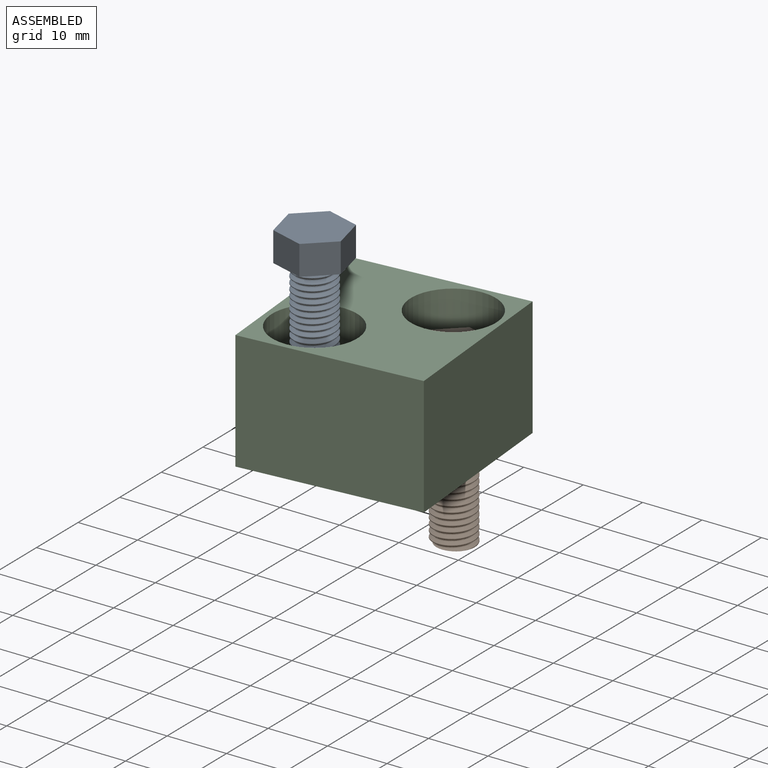
[diagram: assembled view]
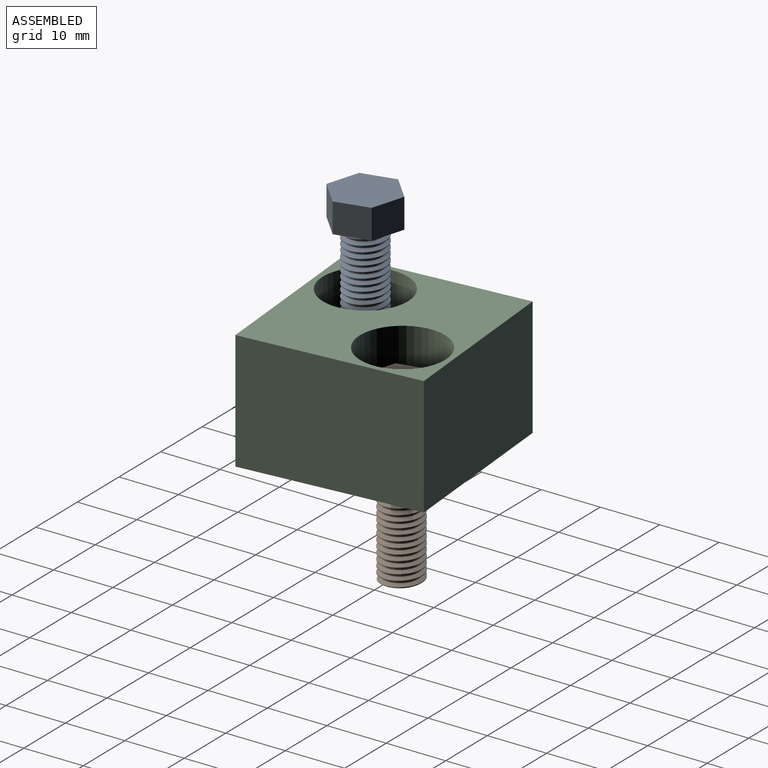
[diagram: assembled view, second angle]
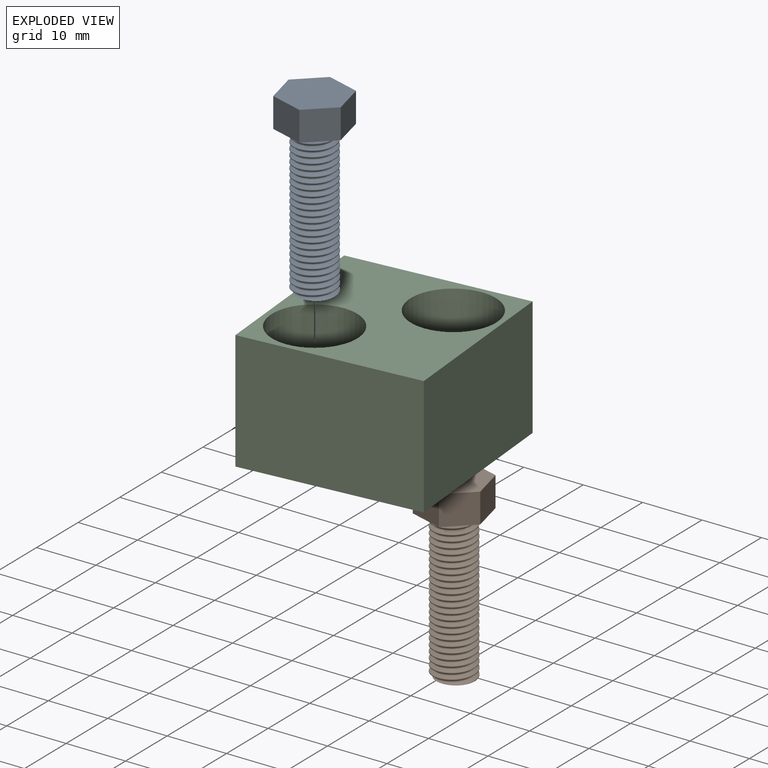
[diagram: exploded view]
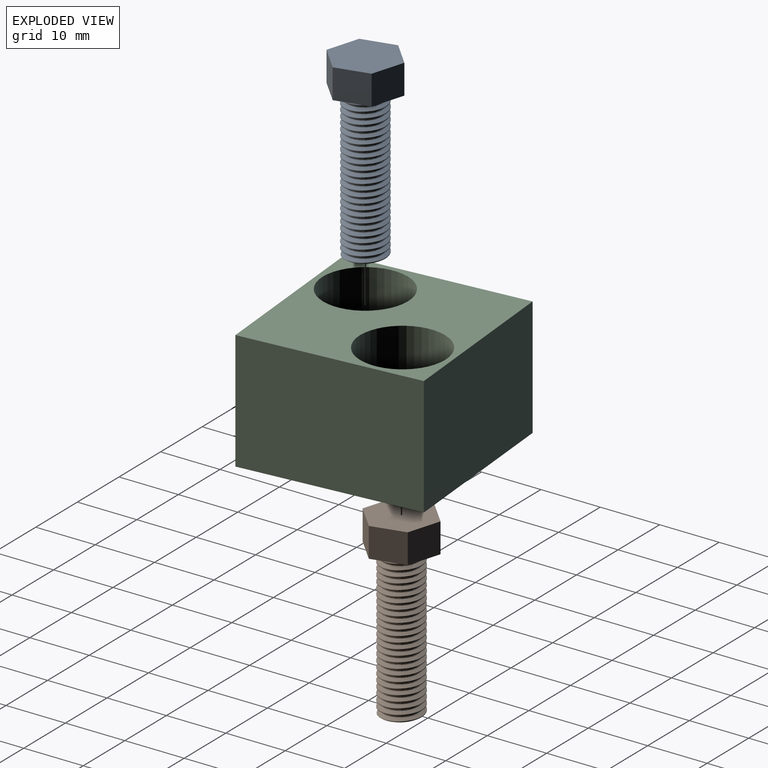
[diagram: exploded view, second angle]
ASSEMBLY  parts=3 mates=2
PART A: 13 faces, bbox 11x11.7x30.7 mm
  f0: plane 5.37x5mm, normal (-0.37,-0.93,0), area 28.9mm2, adj f1,f5,f6,f7
  f1: plane 5x4.51mm, normal (0.62,-0.78,0), area 28.9mm2, adj f0,f2,f6,f7
  f2: plane 5.71x5mm, normal (0.99,0.15,0), area 28.9mm2, adj f1,f3,f6,f7
  f3: plane 5.37x5mm, normal (0.37,0.93,0), area 28.9mm2, adj f2,f4,f6,f7
  f4: plane 5x4.51mm, normal (-0.62,0.78,0), area 28.9mm2, adj f3,f5,f6,f7
  f5: plane 5.71x5mm, normal (-0.99,-0.15,0), area 28.9mm2, adj f0,f4,f6,f7
  f6: plane 11.42x10.75mm, normal (0,0,1), area 86.6mm2, adj f0,f1,f2,f3,f4,f5
  f7: plane 11.7x11.03mm, normal (0,0,-1), area 54.6mm2, adj f0,f1,f2,f3,f4,f5,f8,f10
  f8: cylinder r=3.5mm len=25mm, axis (0,0,1), area 33.2mm2, adj f7,f9,f11,f12
  f9: plane 6.7x6.66mm, normal (0,0,-1), area 32mm2, adj f8,f10,f11,f12
  f10: bspline ~25.75x6.83mm, area 129mm2, adj f7,f9,f11,f12
  f11: bspline ~25.81x8.08mm, area 317mm2, adj f7,f8,f9,f10
  f12: bspline ~25.65x8.08mm, area 316.7mm2, adj f7,f8,f9,f10
PART B: same geometry as A
PART C: 12 faces, bbox 30x30x20 mm
  f0: plane 30x20mm, normal (0,1,0), area 600mm2, adj f1,f3,f4,f5
  f1: plane 30x20mm, normal (-1,0,0), area 600mm2, adj f0,f2,f4,f5
  f2: plane 30x20mm, normal (0,-1,0), area 600mm2, adj f1,f3,f4,f5
  f3: plane 30x20mm, normal (1,0,0), area 600mm2, adj f0,f2,f4,f5
  f4: plane 30x30mm, normal (0,0,-1), area 581mm2, adj f0,f1,f2,f3,f8,f11
  f5: plane 30x30mm, normal (0,0,1), area 772.8mm2, adj f0,f1,f2,f3,f6,f9
  f6: cylinder r=4.5mm len=10mm, axis (0,0,-1), area 282.7mm2, adj f5,f7
  f7: plane 14.25x14.25mm, normal (0,0,-1), area 95.9mm2, adj f6,f8
  f8: cylinder r=7.12mm len=14.25mm, axis (0,0,-1), area 447.7mm2, adj f4,f7
  f9: cylinder r=4.5mm len=10mm, axis (0,0,-1), area 282.7mm2, adj f5,f10
  f10: plane 14.25x14.25mm, normal (0,0,-1), area 95.9mm2, adj f9,f11
  f11: cylinder r=7.12mm len=14.25mm, axis (0,0,-1), area 447.7mm2, adj f4,f10
PLACE A rot(axis=(0,0,1),5deg) t=(9.38,-27.94,-13.21)mm
PLACE B rot(axis=(0,0,1),5deg) t=(22.28,-12.82,-33.21)mm
PLACE C rot(axis=(-1,-0.04,0),180deg) t=(-18.87,-38.44,-43.21)mm
MATE fastened B.f7 <-> C.f6  axis (0,0,-1) through (22.11,-12.77,-33.21)mm
MATE slider A.f8 <-> C.f9  axis (0,0,-1) through (9.38,-27.94,-38.21)mm
